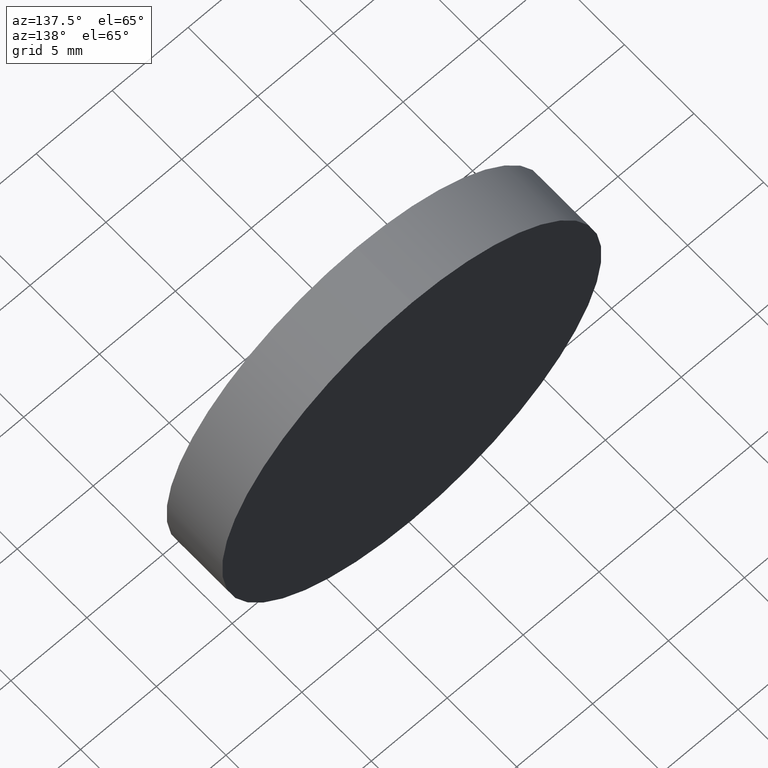
[diagram: clean part render]
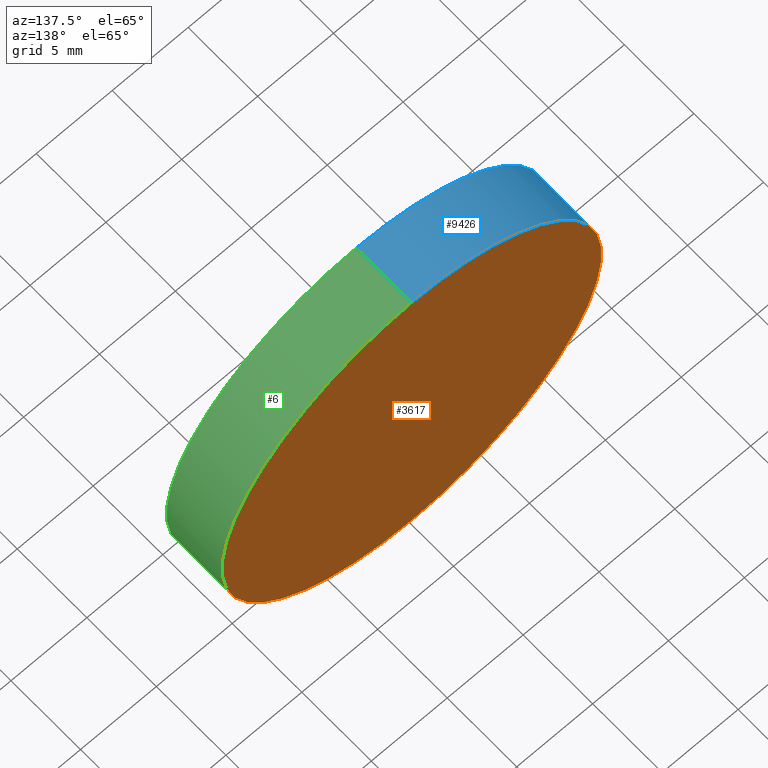
[diagram: same view with three faces highlighted in distinct colors, each labeled with its STEP entity id]
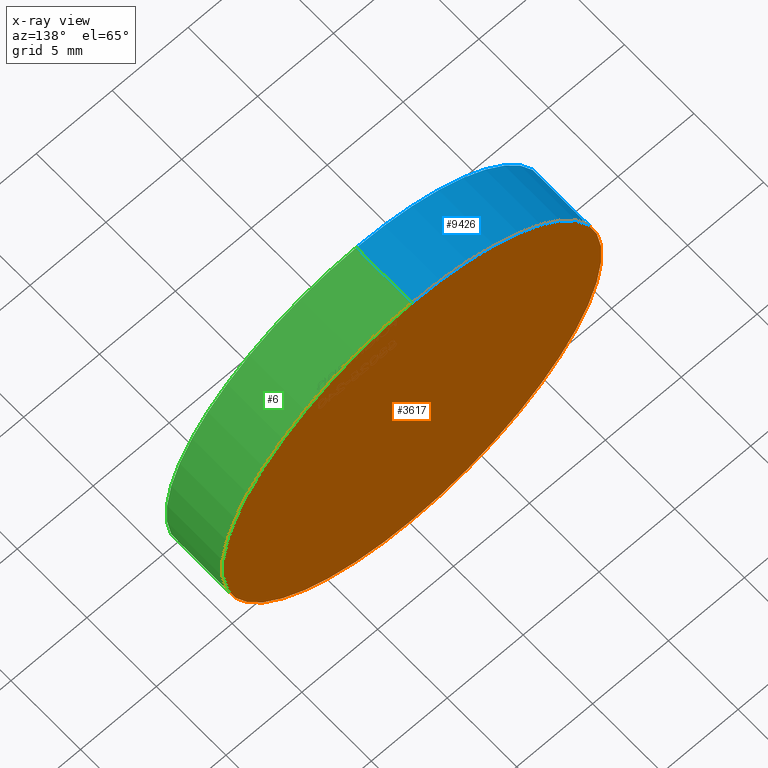
[diagram: x-ray of the same camera — body ghosted, the three highlighted faces saturated]
A machine part, auxiliary view with three faces highlighted in distinct colors.
The next image is the same camera in x-ray (body ghosted, the three faces saturated) — at least one of them is partly hidden behind the body in this view.
Their STEP definitions:

[orange] entity #3617 — the highlighted planar face has unit normal (0, 1, 0).
#455 = CARTESIAN_POINT ( 'NONE',  ( 1.530808498934191521E-15, 2.000000000000000000, 12.50000000000000000 ) ) ;
#523 = EDGE_CURVE ( 'NONE', #2759, #3497, #6115, .T. ) ;
#668 = DIRECTION ( 'NONE',  ( 0.000000000000000000, -0.000000000000000000, 1.000000000000000000 ) ) ;
#1585 = DIRECTION ( 'NONE',  ( 0.000000000000000000, 1.000000000000000000, 0.000000000000000000 ) ) ;
#2269 = AXIS2_PLACEMENT_3D ( 'NONE', #11075, #4909, #6977 ) ;
#2759 = VERTEX_POINT ( 'NONE', #8283 ) ;
#2967 = EDGE_CURVE ( 'NONE', #3497, #2759, #9845, .T. ) ;
#3497 = VERTEX_POINT ( 'NONE', #455 ) ;
#3617 = ADVANCED_FACE ( 'NONE', ( #9693 ), #4807, .T. ) ;
#4807 = PLANE ( 'NONE',  #5751 ) ;
#4909 = DIRECTION ( 'NONE',  ( 0.000000000000000000, 1.000000000000000000, 0.000000000000000000 ) ) ;
#5064 = DIRECTION ( 'NONE',  ( 0.000000000000000000, 1.000000000000000000, 0.000000000000000000 ) ) ;
#5263 = ORIENTED_EDGE ( 'NONE', *, *, #523, .T. ) ;
#5464 = EDGE_LOOP ( 'NONE', ( #5263, #11066 ) ) ;
#5751 = AXIS2_PLACEMENT_3D ( 'NONE', #12872, #1585, #668 ) ;
#6115 = CIRCLE ( 'NONE', #2269, 12.50000000000000000 ) ;
#6152 = DIRECTION ( 'NONE',  ( 0.000000000000000000, 0.000000000000000000, 1.000000000000000000 ) ) ;
#6597 = AXIS2_PLACEMENT_3D ( 'NONE', #10915, #5064, #6152 ) ;
#6977 = DIRECTION ( 'NONE',  ( 0.000000000000000000, 0.000000000000000000, 1.000000000000000000 ) ) ;
#8283 = CARTESIAN_POINT ( 'NONE',  ( 0.000000000000000000, 2.000000000000000000, -12.50000000000000000 ) ) ;
#9693 = FACE_OUTER_BOUND ( 'NONE', #5464, .T. ) ;
#9845 = CIRCLE ( 'NONE', #6597, 12.50000000000000000 ) ;
#10915 = CARTESIAN_POINT ( 'NONE',  ( 0.000000000000000000, 2.000000000000000000, 0.000000000000000000 ) ) ;
#11066 = ORIENTED_EDGE ( 'NONE', *, *, #2967, .T. ) ;
#11075 = CARTESIAN_POINT ( 'NONE',  ( 0.000000000000000000, 2.000000000000000000, 0.000000000000000000 ) ) ;
#12872 = CARTESIAN_POINT ( 'NONE',  ( 0.000000000000000000, 2.000000000000000000, 0.000000000000000000 ) ) ;

[blue] entity #9426 — the highlighted cylindrical surface (partial cylindrical patch) has radius 12.5 mm, axis along (-0, -1, -0).
#167 = CARTESIAN_POINT ( 'NONE',  ( 1.530808498934191521E-15, 2.000000000000000000, 12.50000000000000000 ) ) ;
#455 = CARTESIAN_POINT ( 'NONE',  ( 1.530808498934191521E-15, 2.000000000000000000, 12.50000000000000000 ) ) ;
#523 = EDGE_CURVE ( 'NONE', #2759, #3497, #6115, .T. ) ;
#618 = EDGE_CURVE ( 'NONE', #3417, #1209, #9716, .T. ) ;
#873 = ORIENTED_EDGE ( 'NONE', *, *, #6372, .T. ) ;
#1209 = VERTEX_POINT ( 'NONE', #8602 ) ;
#2060 = DIRECTION ( 'NONE',  ( 0.000000000000000000, 0.000000000000000000, -1.000000000000000000 ) ) ;
#2269 = AXIS2_PLACEMENT_3D ( 'NONE', #11075, #4909, #6977 ) ;
#2759 = VERTEX_POINT ( 'NONE', #8283 ) ;
#2847 = AXIS2_PLACEMENT_3D ( 'NONE', #8105, #8244, #2060 ) ;
#3417 = VERTEX_POINT ( 'NONE', #4349 ) ;
#3497 = VERTEX_POINT ( 'NONE', #455 ) ;
#3818 = EDGE_LOOP ( 'NONE', ( #7879, #12151, #873, #12044 ) ) ;
#4349 = CARTESIAN_POINT ( 'NONE',  ( 0.000000000000000000, -2.000000000000000000, -12.50000000000000000 ) ) ;
#4838 = VECTOR ( 'NONE', #10365, 1000.000000000000000 ) ;
#4909 = DIRECTION ( 'NONE',  ( 0.000000000000000000, 1.000000000000000000, 0.000000000000000000 ) ) ;
#4949 = DIRECTION ( 'NONE',  ( 0.000000000000000000, 0.000000000000000000, 1.000000000000000000 ) ) ;
#4980 = EDGE_CURVE ( 'NONE', #3497, #1209, #9353, .T. ) ;
#5736 = AXIS2_PLACEMENT_3D ( 'NONE', #10119, #10066, #4949 ) ;
#6115 = CIRCLE ( 'NONE', #2269, 12.50000000000000000 ) ;
#6372 = EDGE_CURVE ( 'NONE', #2759, #3417, #13163, .T. ) ;
#6977 = DIRECTION ( 'NONE',  ( 0.000000000000000000, 0.000000000000000000, 1.000000000000000000 ) ) ;
#7345 = CARTESIAN_POINT ( 'NONE',  ( 0.000000000000000000, 2.000000000000000000, -12.50000000000000000 ) ) ;
#7409 = DIRECTION ( 'NONE',  ( -0.000000000000000000, -1.000000000000000000, -0.000000000000000000 ) ) ;
#7879 = ORIENTED_EDGE ( 'NONE', *, *, #4980, .F. ) ;
#8105 = CARTESIAN_POINT ( 'NONE',  ( 0.000000000000000000, 2.000000000000000000, 0.000000000000000000 ) ) ;
#8244 = DIRECTION ( 'NONE',  ( -0.000000000000000000, -1.000000000000000000, -0.000000000000000000 ) ) ;
#8283 = CARTESIAN_POINT ( 'NONE',  ( 0.000000000000000000, 2.000000000000000000, -12.50000000000000000 ) ) ;
#8602 = CARTESIAN_POINT ( 'NONE',  ( 1.530808498934191521E-15, -2.000000000000000000, 12.50000000000000000 ) ) ;
#9353 = LINE ( 'NONE', #167, #11588 ) ;
#9426 = ADVANCED_FACE ( 'NONE', ( #10929 ), #13298, .T. ) ;
#9716 = CIRCLE ( 'NONE', #5736, 12.50000000000000000 ) ;
#10066 = DIRECTION ( 'NONE',  ( 0.000000000000000000, 1.000000000000000000, 0.000000000000000000 ) ) ;
#10119 = CARTESIAN_POINT ( 'NONE',  ( 0.000000000000000000, -2.000000000000000000, 0.000000000000000000 ) ) ;
#10365 = DIRECTION ( 'NONE',  ( -0.000000000000000000, -1.000000000000000000, -0.000000000000000000 ) ) ;
#10929 = FACE_OUTER_BOUND ( 'NONE', #3818, .T. ) ;
#11075 = CARTESIAN_POINT ( 'NONE',  ( 0.000000000000000000, 2.000000000000000000, 0.000000000000000000 ) ) ;
#11588 = VECTOR ( 'NONE', #7409, 1000.000000000000000 ) ;
#12044 = ORIENTED_EDGE ( 'NONE', *, *, #618, .T. ) ;
#12151 = ORIENTED_EDGE ( 'NONE', *, *, #523, .F. ) ;
#13163 = LINE ( 'NONE', #7345, #4838 ) ;
#13298 = CYLINDRICAL_SURFACE ( 'NONE', #2847, 12.50000000000000000 ) ;

[green] entity #6 — the highlighted cylindrical surface (partial cylindrical patch) has radius 12.5 mm, axis along (-0, -1, -0).
#6 = ADVANCED_FACE ( 'NONE', ( #5999 ), #12596, .T. ) ;
#167 = CARTESIAN_POINT ( 'NONE',  ( 1.530808498934191521E-15, 2.000000000000000000, 12.50000000000000000 ) ) ;
#333 = DIRECTION ( 'NONE',  ( 0.000000000000000000, 0.000000000000000000, -1.000000000000000000 ) ) ;
#455 = CARTESIAN_POINT ( 'NONE',  ( 1.530808498934191521E-15, 2.000000000000000000, 12.50000000000000000 ) ) ;
#1209 = VERTEX_POINT ( 'NONE', #8602 ) ;
#2138 = ORIENTED_EDGE ( 'NONE', *, *, #6372, .F. ) ;
#2759 = VERTEX_POINT ( 'NONE', #8283 ) ;
#2967 = EDGE_CURVE ( 'NONE', #3497, #2759, #9845, .T. ) ;
#3417 = VERTEX_POINT ( 'NONE', #4349 ) ;
#3497 = VERTEX_POINT ( 'NONE', #455 ) ;
#3529 = ORIENTED_EDGE ( 'NONE', *, *, #4980, .T. ) ;
#4039 = EDGE_LOOP ( 'NONE', ( #7708, #3529, #13086, #2138 ) ) ;
#4349 = CARTESIAN_POINT ( 'NONE',  ( 0.000000000000000000, -2.000000000000000000, -12.50000000000000000 ) ) ;
#4838 = VECTOR ( 'NONE', #10365, 1000.000000000000000 ) ;
#4980 = EDGE_CURVE ( 'NONE', #3497, #1209, #9353, .T. ) ;
#5064 = DIRECTION ( 'NONE',  ( 0.000000000000000000, 1.000000000000000000, 0.000000000000000000 ) ) ;
#5357 = AXIS2_PLACEMENT_3D ( 'NONE', #12195, #11089, #7129 ) ;
#5999 = FACE_OUTER_BOUND ( 'NONE', #4039, .T. ) ;
#6152 = DIRECTION ( 'NONE',  ( 0.000000000000000000, 0.000000000000000000, 1.000000000000000000 ) ) ;
#6372 = EDGE_CURVE ( 'NONE', #2759, #3417, #13163, .T. ) ;
#6597 = AXIS2_PLACEMENT_3D ( 'NONE', #10915, #5064, #6152 ) ;
#7129 = DIRECTION ( 'NONE',  ( 0.000000000000000000, 0.000000000000000000, 1.000000000000000000 ) ) ;
#7345 = CARTESIAN_POINT ( 'NONE',  ( 0.000000000000000000, 2.000000000000000000, -12.50000000000000000 ) ) ;
#7409 = DIRECTION ( 'NONE',  ( -0.000000000000000000, -1.000000000000000000, -0.000000000000000000 ) ) ;
#7550 = AXIS2_PLACEMENT_3D ( 'NONE', #11551, #9540, #333 ) ;
#7708 = ORIENTED_EDGE ( 'NONE', *, *, #2967, .F. ) ;
#7948 = EDGE_CURVE ( 'NONE', #1209, #3417, #11560, .T. ) ;
#8283 = CARTESIAN_POINT ( 'NONE',  ( 0.000000000000000000, 2.000000000000000000, -12.50000000000000000 ) ) ;
#8602 = CARTESIAN_POINT ( 'NONE',  ( 1.530808498934191521E-15, -2.000000000000000000, 12.50000000000000000 ) ) ;
#9353 = LINE ( 'NONE', #167, #11588 ) ;
#9540 = DIRECTION ( 'NONE',  ( -0.000000000000000000, -1.000000000000000000, -0.000000000000000000 ) ) ;
#9845 = CIRCLE ( 'NONE', #6597, 12.50000000000000000 ) ;
#10365 = DIRECTION ( 'NONE',  ( -0.000000000000000000, -1.000000000000000000, -0.000000000000000000 ) ) ;
#10915 = CARTESIAN_POINT ( 'NONE',  ( 0.000000000000000000, 2.000000000000000000, 0.000000000000000000 ) ) ;
#11089 = DIRECTION ( 'NONE',  ( 0.000000000000000000, 1.000000000000000000, 0.000000000000000000 ) ) ;
#11551 = CARTESIAN_POINT ( 'NONE',  ( 0.000000000000000000, 2.000000000000000000, 0.000000000000000000 ) ) ;
#11560 = CIRCLE ( 'NONE', #5357, 12.50000000000000000 ) ;
#11588 = VECTOR ( 'NONE', #7409, 1000.000000000000000 ) ;
#12195 = CARTESIAN_POINT ( 'NONE',  ( 0.000000000000000000, -2.000000000000000000, 0.000000000000000000 ) ) ;
#12596 = CYLINDRICAL_SURFACE ( 'NONE', #7550, 12.50000000000000000 ) ;
#13086 = ORIENTED_EDGE ( 'NONE', *, *, #7948, .T. ) ;
#13163 = LINE ( 'NONE', #7345, #4838 ) ;